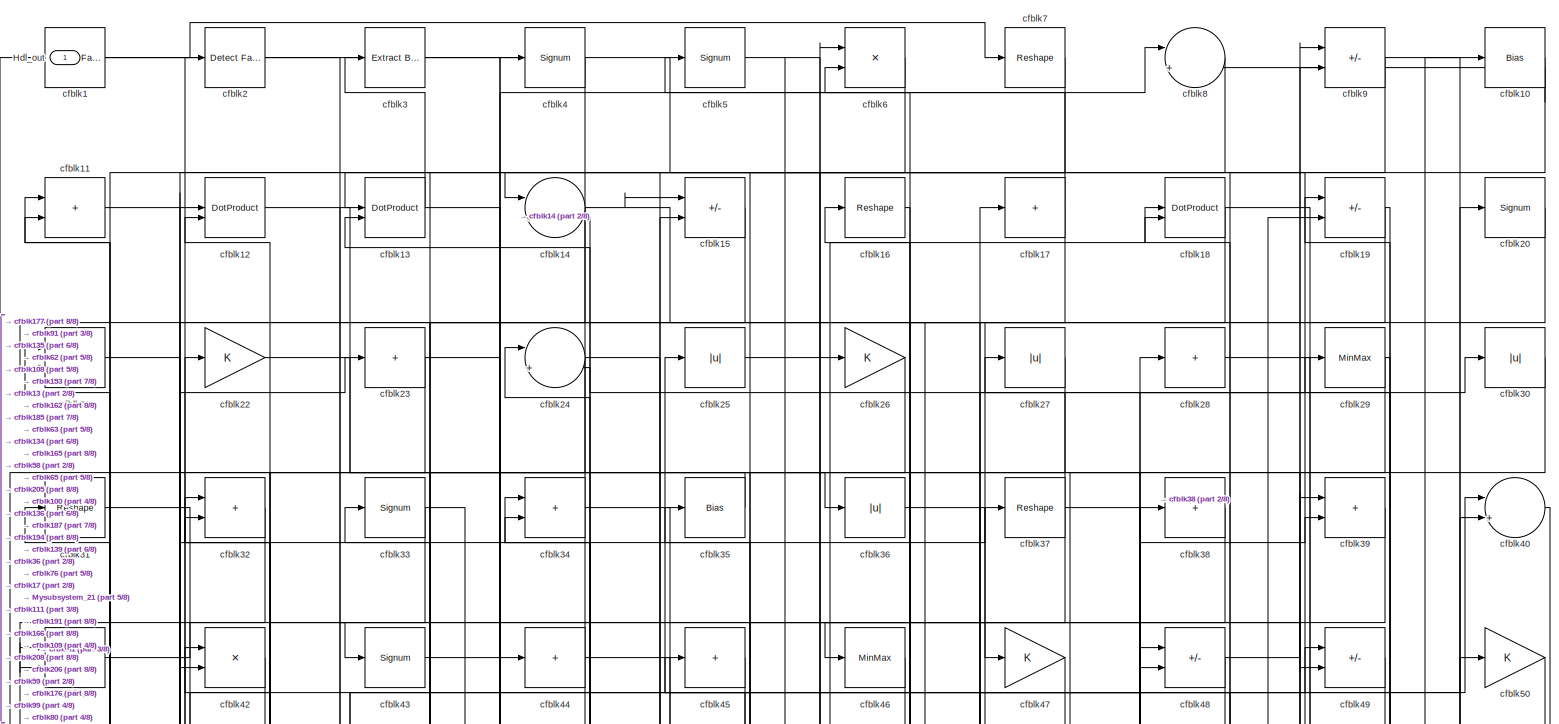
[diagram: root canvas - part 1/8, full width, top band]
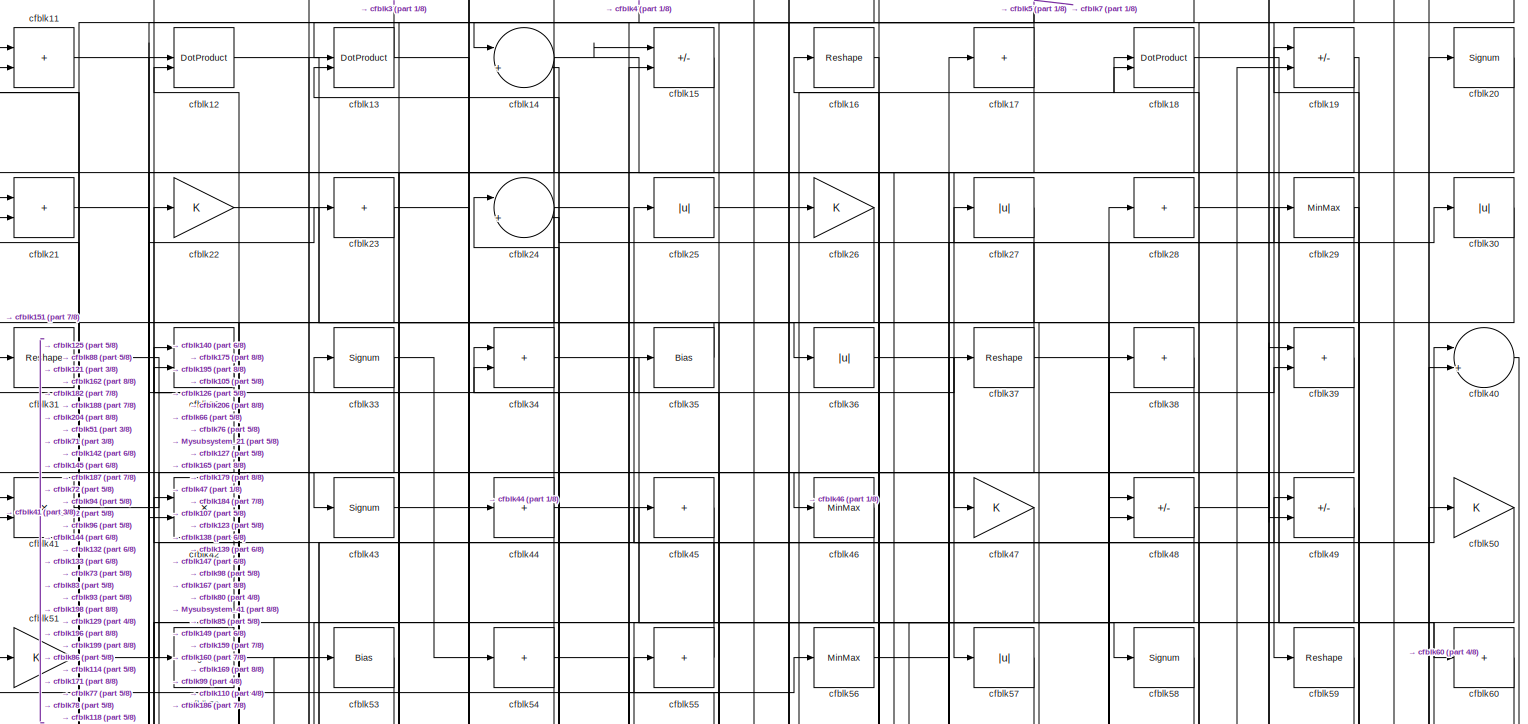
[diagram: root canvas - part 2/8, full width, top band]
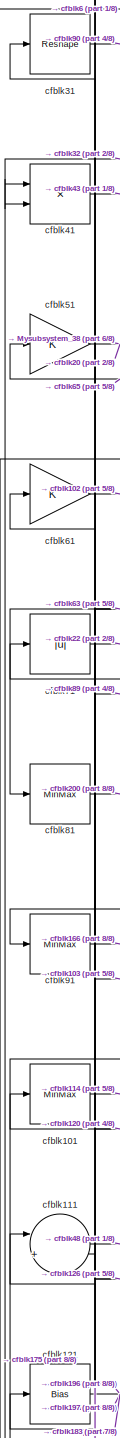
[diagram: root canvas - part 3/8, middle left region]
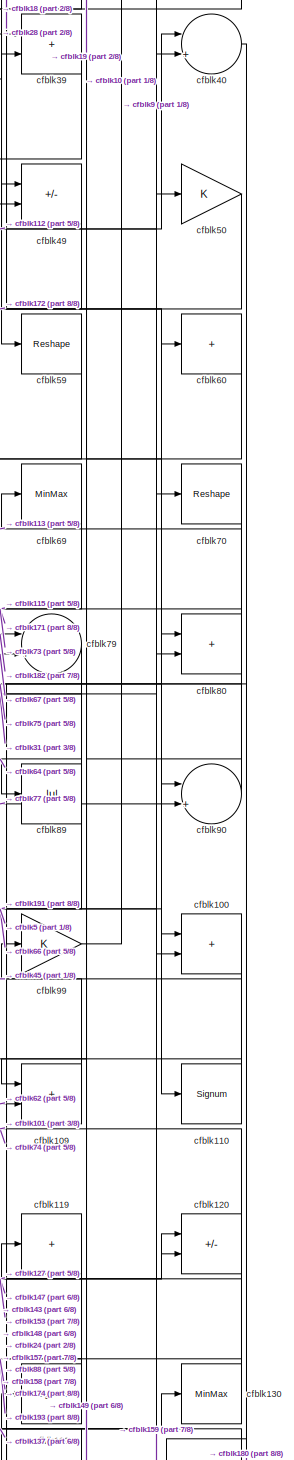
[diagram: root canvas - part 4/8, middle right region]
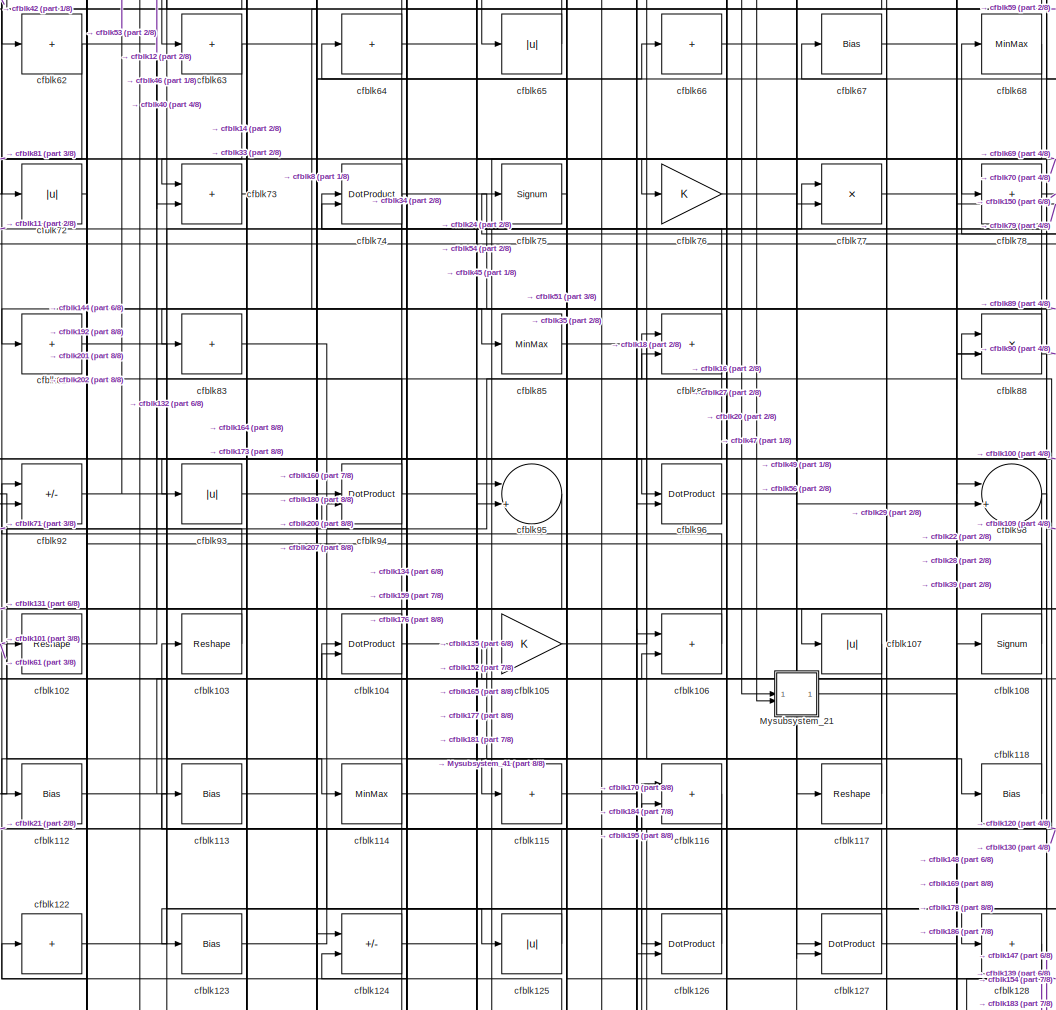
[diagram: root canvas - part 5/8, central region]
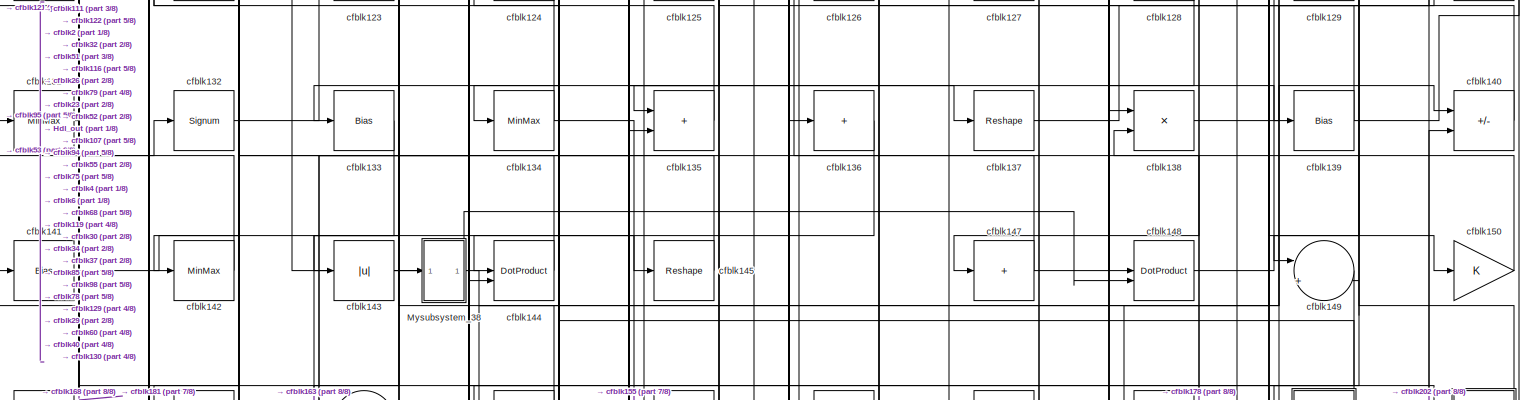
[diagram: root canvas - part 6/8, full width, bottom band]
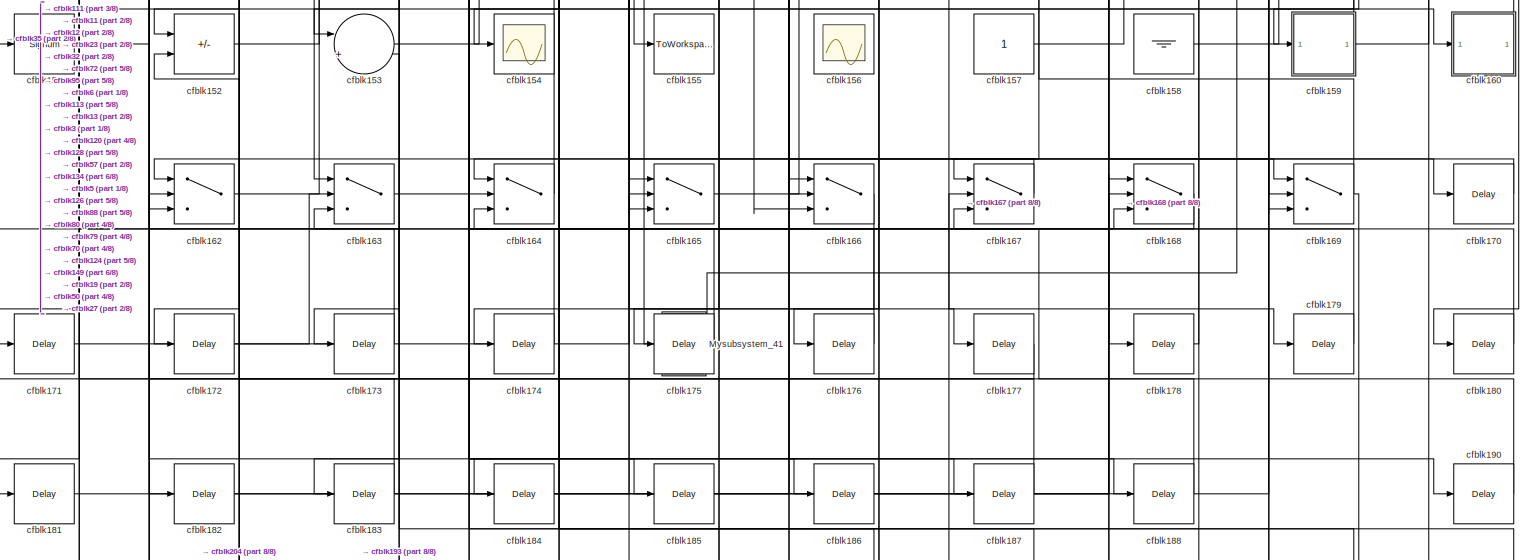
[diagram: root canvas - part 7/8, full width, bottom band]
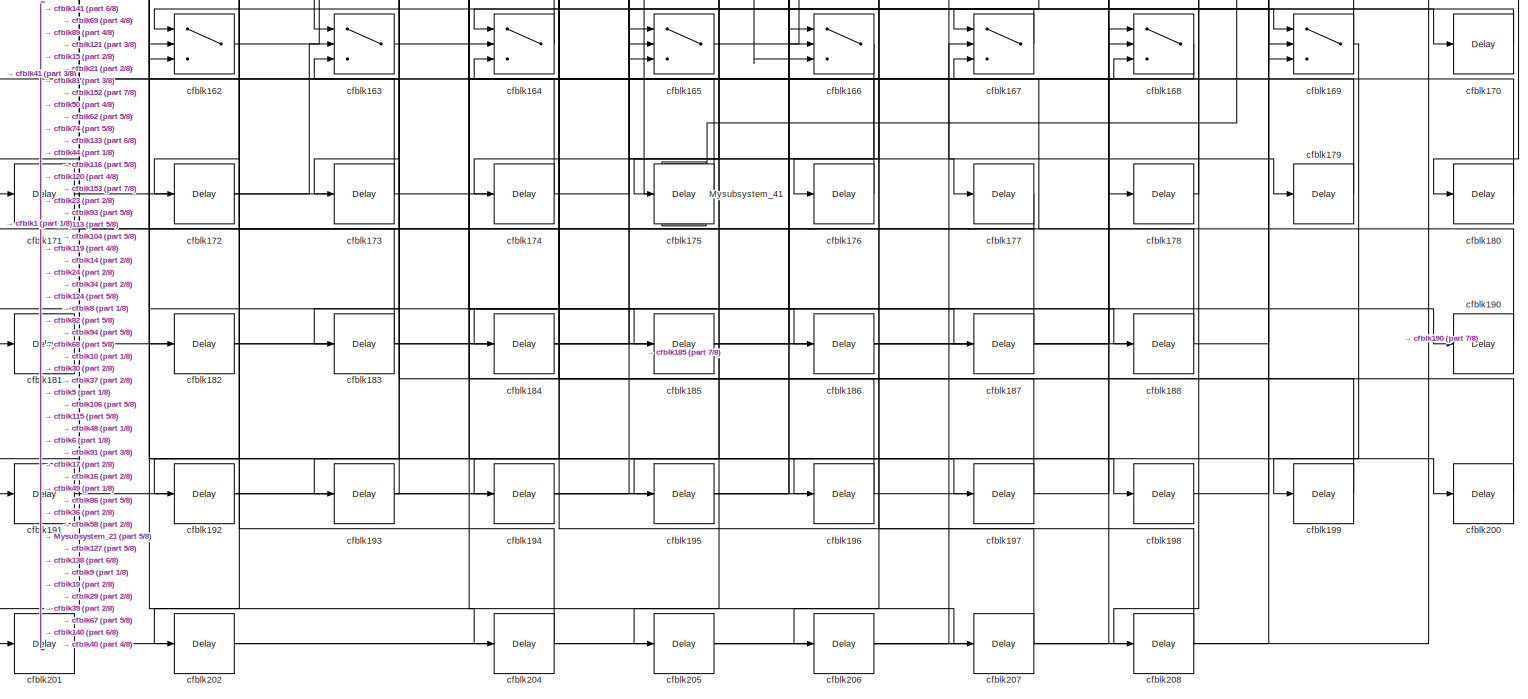
[diagram: root canvas - part 8/8, full width, bottom band]
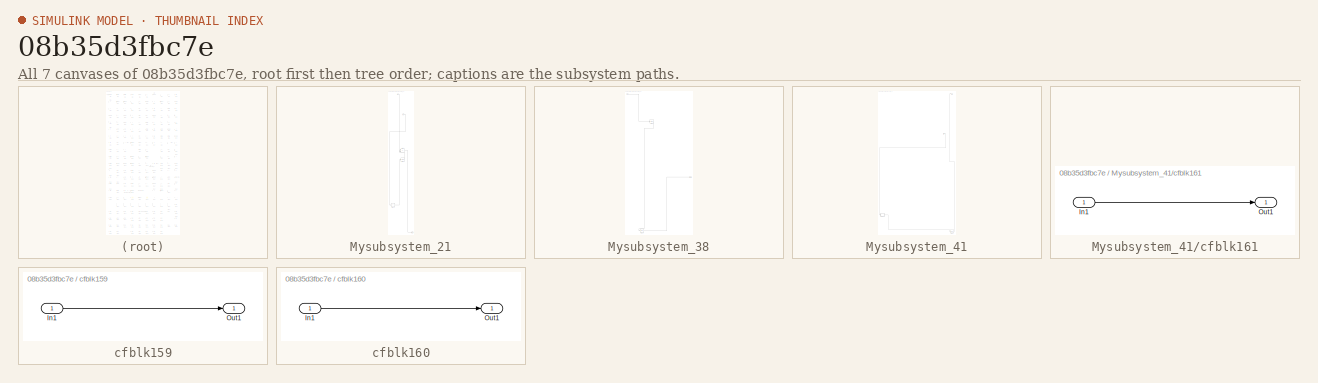
[diagram: thumbnail index - all 7 canvases of the model, root first then tree order]
MODEL slx_08b35d3fbc7e
KIND model
CONFIG AbsTol = auto
CONFIG EnableMultiTasking = off
CONFIG FixedStep = auto
CONFIG MaxStep = auto
CONFIG MinStep = auto
CONFIG RelTol = 1e-3
CONFIG SampleTimeConstraint = Unconstrained
CONFIG SolverName = VariableStepAuto
CONFIG StartTime = 0.0
CONFIG StopTime = 10.0
BLOCK [Outport] Hdl_out
  OutDataTypeStr = uint8
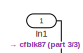
[diagram: Mysubsystem_21 - part 1/3, top center region]
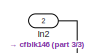
[diagram: Mysubsystem_21 - part 2/3, top center region]
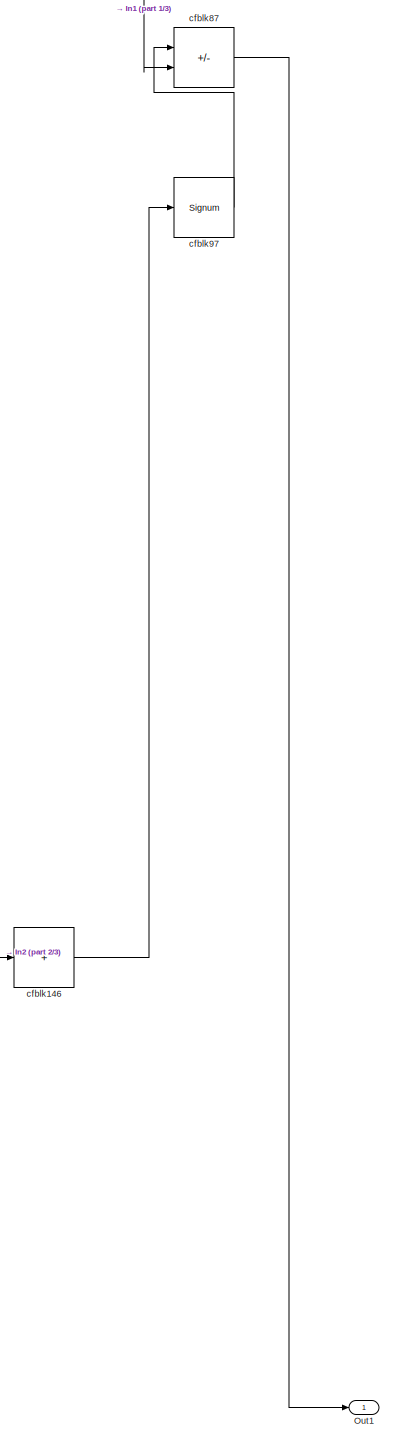
[diagram: Mysubsystem_21 - part 3/3, full width, bottom band]
BLOCK [SubSystem] Mysubsystem_21
  RTWFcnName = Mysubsystem_21
  RTWFcnNameOpts = User specified
  RTWFileNameOpts = Use function name
  RTWSystemCode = Reusable function
  TreatAsAtomicUnit = on
BLOCK [Inport] Mysubsystem_21/In1
BLOCK [Inport] Mysubsystem_21/In2
  Port = 2
BLOCK [Outport] Mysubsystem_21/Out1
BLOCK [Sum] Mysubsystem_21/cfblk146
  IconShape = rectangular
  Inputs = +
BLOCK [Sum] Mysubsystem_21/cfblk87
  IconShape = rectangular
  Inputs = +-
BLOCK [Signum] Mysubsystem_21/cfblk97
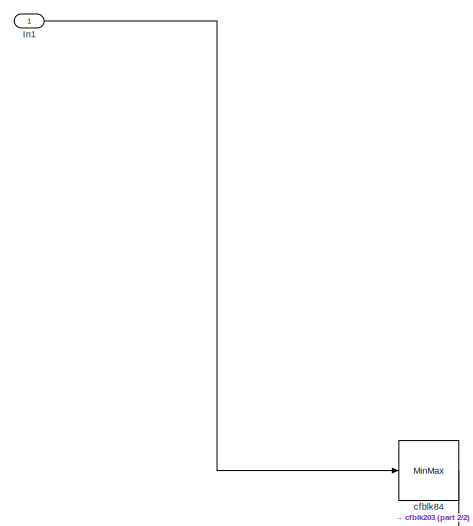
[diagram: Mysubsystem_38 - part 1/2, top left region]
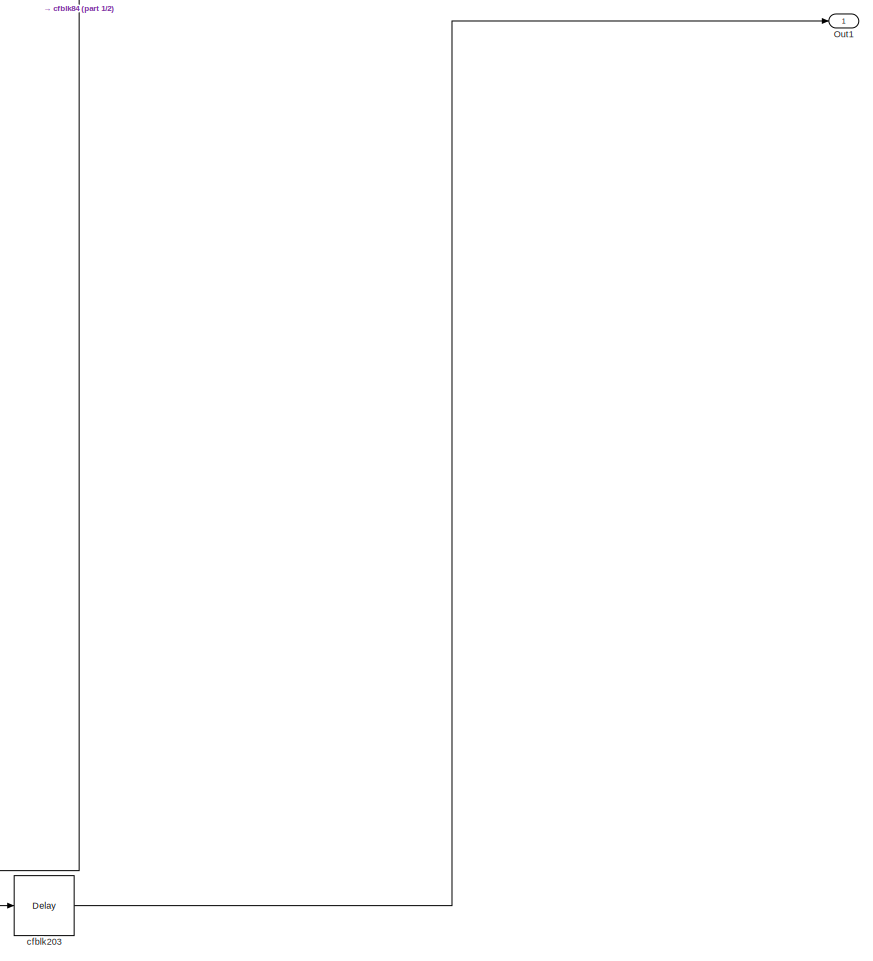
[diagram: Mysubsystem_38 - part 2/2, full width, bottom band]
BLOCK [SubSystem] Mysubsystem_38
  RTWFcnName = Mysubsystem_38
  RTWFcnNameOpts = User specified
  RTWFileNameOpts = Use function name
  RTWSystemCode = Reusable function
  TreatAsAtomicUnit = on
BLOCK [Inport] Mysubsystem_38/In1
BLOCK [Outport] Mysubsystem_38/Out1
BLOCK [Delay] Mysubsystem_38/cfblk203
  InputPortMap = u0
  SampleTime = 1
BLOCK [MinMax] Mysubsystem_38/cfblk84
BLOCK [SubSystem] Mysubsystem_41
  RTWFcnName = Mysubsystem_41
  RTWFcnNameOpts = User specified
  RTWFileNameOpts = Use function name
  RTWSystemCode = Reusable function
  TreatAsAtomicUnit = on
BLOCK [Inport] Mysubsystem_41/In1
BLOCK [Outport] Mysubsystem_41/Out1
BLOCK [SubSystem] Mysubsystem_41/cfblk161
  LibrarySourceBlock = hdlsllib/Ports &\nSubsystems/Subsystem
BLOCK [Inport] Mysubsystem_41/cfblk161/In1
BLOCK [Outport] Mysubsystem_41/cfblk161/Out1
BLOCK [Delay] Mysubsystem_41/cfblk189
  InputPortMap = u0
  SampleTime = 1
BLOCK [Reference] cfblk1  REF=hdlsllib/Logic and Bit
Operations/Detect Fall
Negative
  SourceBlock = hdlsllib/Logic and Bit\nOperations/Detect Fall\nNegative
  SourceType = Detect Fall Negative
BLOCK [Bias] cfblk10
  Bias = 0.0
  SaturateOnIntegerOverflow = off
BLOCK [Sum] cfblk100
  IconShape = rectangular
  OutDataTypeStr = uint8
BLOCK [MinMax] cfblk101
  OutDataTypeStr = uint8
BLOCK [Reshape] cfblk102
BLOCK [Reshape] cfblk103
BLOCK [DotProduct] cfblk104
  OutDataTypeStr = uint8
BLOCK [Gain] cfblk105
  OutDataTypeStr = uint8
BLOCK [Sum] cfblk106
  IconShape = rectangular
  OutDataTypeStr = uint8
BLOCK [Abs] cfblk107
  OutDataTypeStr = uint8
  SaturateOnIntegerOverflow = off
BLOCK [Signum] cfblk108
BLOCK [Sum] cfblk109
  IconShape = rectangular
  OutDataTypeStr = uint8
BLOCK [Sum] cfblk11
  IconShape = rectangular
  OutDataTypeStr = uint8
BLOCK [Signum] cfblk110
BLOCK [Sum] cfblk111
  Inputs = |++
  OutDataTypeStr = uint8
BLOCK [Bias] cfblk112
  Bias = 0.0
  SaturateOnIntegerOverflow = off
BLOCK [Bias] cfblk113
  Bias = 0.0
  SaturateOnIntegerOverflow = off
BLOCK [MinMax] cfblk114
  OutDataTypeStr = uint8
BLOCK [Sum] cfblk115
  IconShape = rectangular
  Inputs = +
  OutDataTypeStr = uint8
BLOCK [Sum] cfblk116
  IconShape = rectangular
  OutDataTypeStr = uint8
BLOCK [Reshape] cfblk117
BLOCK [Bias] cfblk118
  Bias = 0.0
  SaturateOnIntegerOverflow = off
BLOCK [Sum] cfblk119
  IconShape = rectangular
  Inputs = +
  OutDataTypeStr = uint8
BLOCK [DotProduct] cfblk12
  OutDataTypeStr = uint8
BLOCK [Sum] cfblk120
  IconShape = rectangular
  Inputs = +-
  OutDataTypeStr = uint8
BLOCK [Bias] cfblk121
  Bias = 0.0
  SaturateOnIntegerOverflow = off
BLOCK [Sum] cfblk122
  IconShape = rectangular
  Inputs = +
  OutDataTypeStr = uint8
BLOCK [Bias] cfblk123
  Bias = 0.0
  SaturateOnIntegerOverflow = off
BLOCK [Sum] cfblk124
  IconShape = rectangular
  Inputs = +-
  OutDataTypeStr = uint8
BLOCK [Abs] cfblk125
  OutDataTypeStr = uint8
  SaturateOnIntegerOverflow = off
BLOCK [DotProduct] cfblk126
  OutDataTypeStr = uint8
BLOCK [DotProduct] cfblk127
  OutDataTypeStr = uint8
BLOCK [Sum] cfblk128
  IconShape = rectangular
  Inputs = +
  OutDataTypeStr = uint8
BLOCK [Signum] cfblk129
BLOCK [DotProduct] cfblk13
  OutDataTypeStr = uint8
BLOCK [MinMax] cfblk130
  OutDataTypeStr = uint8
BLOCK [MinMax] cfblk131
  OutDataTypeStr = uint8
BLOCK [Signum] cfblk132
BLOCK [Bias] cfblk133
  Bias = 0.0
  SaturateOnIntegerOverflow = off
BLOCK [MinMax] cfblk134
  OutDataTypeStr = uint8
BLOCK [Sum] cfblk135
  IconShape = rectangular
  OutDataTypeStr = uint8
BLOCK [Sum] cfblk136
  IconShape = rectangular
  Inputs = +
  OutDataTypeStr = uint8
BLOCK [Reshape] cfblk137
BLOCK [Product] cfblk138
  Inputs = */
  OutDataTypeStr = uint8
  RndMeth = Zero
  SaturateOnIntegerOverflow = on
BLOCK [Bias] cfblk139
  Bias = 0.0
  SaturateOnIntegerOverflow = off
BLOCK [Sum] cfblk14
  Inputs = |++
  OutDataTypeStr = uint8
BLOCK [Sum] cfblk140
  IconShape = rectangular
  Inputs = +-
  OutDataTypeStr = uint8
BLOCK [Bias] cfblk141
  Bias = 0.0
  SaturateOnIntegerOverflow = off
BLOCK [MinMax] cfblk142
  OutDataTypeStr = uint8
BLOCK [Abs] cfblk143
  OutDataTypeStr = uint8
  SaturateOnIntegerOverflow = off
BLOCK [DotProduct] cfblk144
  OutDataTypeStr = uint8
BLOCK [Reshape] cfblk145
BLOCK [Sum] cfblk147
  IconShape = rectangular
  Inputs = +
  OutDataTypeStr = uint8
BLOCK [DotProduct] cfblk148
  OutDataTypeStr = uint8
BLOCK [Sum] cfblk149
  Inputs = |++
  OutDataTypeStr = uint8
BLOCK [Sum] cfblk15
  IconShape = rectangular
  Inputs = +-
  OutDataTypeStr = uint8
BLOCK [Gain] cfblk150
  OutDataTypeStr = uint8
BLOCK [Signum] cfblk151
BLOCK [Sum] cfblk152
  IconShape = rectangular
  Inputs = +-
  OutDataTypeStr = uint8
BLOCK [Sum] cfblk153
  Inputs = |++
  OutDataTypeStr = uint8
BLOCK [Scope] cfblk154
  Floating = off
  NumInputPorts = 1
  ScopeSpecificationString = Simulink.scopes.TimeScopeBlockCfg('CurrentConfiguration', extmgr.ConfigurationSet(extmgr.Configuration('Core','General UI',true),extmgr.Configuration('Core','Source UI',true),extmgr.Configuration('Sources','WiredSimulink',true,'DataLoggingVariableName','ScopeData2','DataLoggingSaveFormat','Array','DataLoggingLimitDataPoints',true,'DataLoggingDecimation','1'),extmgr.Configuration('Visuals','Time Do...<+868ch>
BLOCK [ToWorkspace] cfblk155
  MaxDataPoints = inf
  SampleTime = -1
  SaveFormat = Timeseries
  VariableName = simout
BLOCK [Scope] cfblk156
  Floating = on
  NumInputPorts = 1
  ScopeSpecificationString = Simulink.scopes.TimeScopeBlockCfg('CurrentConfiguration', extmgr.ConfigurationSet(extmgr.Configuration('Core','General UI',true,'FigureColor',[0.156862745098039 0.156862745098039 0.156862745098039]),extmgr.Configuration('Core','Source UI',true),extmgr.Configuration('Sources','WiredSimulink',true,'DataLoggingVariableName','ScopeData1','DataLoggingSaveFormat','StructureWithTime','DataLoggingLimitDat...<+2713ch>
BLOCK [Constant] cfblk157
  OutDataTypeStr = uint8
  SampleTime = -1
BLOCK [Ground] cfblk158
BLOCK [SubSystem] cfblk159
  LibrarySourceBlock = hdlsllib/Ports &\nSubsystems/Subsystem
BLOCK [Inport] cfblk159/In1
BLOCK [Outport] cfblk159/Out1
BLOCK [Reshape] cfblk16
BLOCK [SubSystem] cfblk160
  LibrarySourceBlock = hdlsllib/Ports &\nSubsystems/Subsystem
BLOCK [Inport] cfblk160/In1
BLOCK [Outport] cfblk160/Out1
BLOCK [Switch] cfblk162
  InputSameDT = off
  OutDataTypeStr = uint8
  SaturateOnIntegerOverflow = off
BLOCK [Switch] cfblk163
  InputSameDT = off
  OutDataTypeStr = uint8
  SaturateOnIntegerOverflow = off
BLOCK [Switch] cfblk164
  InputSameDT = off
  OutDataTypeStr = uint8
  SaturateOnIntegerOverflow = off
BLOCK [Switch] cfblk165
  InputSameDT = off
  OutDataTypeStr = uint8
  SaturateOnIntegerOverflow = off
BLOCK [Switch] cfblk166
  InputSameDT = off
  OutDataTypeStr = uint8
  SaturateOnIntegerOverflow = off
BLOCK [Switch] cfblk167
  InputSameDT = off
  OutDataTypeStr = uint8
  SaturateOnIntegerOverflow = off
BLOCK [Switch] cfblk168
  InputSameDT = off
  OutDataTypeStr = uint8
  SaturateOnIntegerOverflow = off
BLOCK [Switch] cfblk169
  InputSameDT = off
  OutDataTypeStr = uint8
  SaturateOnIntegerOverflow = off
BLOCK [Sum] cfblk17
  IconShape = rectangular
  Inputs = +
  OutDataTypeStr = uint8
BLOCK [Delay] cfblk170
  InputPortMap = u0
  SampleTime = 1
BLOCK [Delay] cfblk171
  InputPortMap = u0
  SampleTime = 1
BLOCK [Delay] cfblk172
  InputPortMap = u0
  SampleTime = 1
BLOCK [Delay] cfblk173
  InputPortMap = u0
  SampleTime = 1
BLOCK [Delay] cfblk174
  InputPortMap = u0
  SampleTime = 1
BLOCK [Delay] cfblk175
  InputPortMap = u0
  SampleTime = 1
BLOCK [Delay] cfblk176
  InputPortMap = u0
  SampleTime = 1
BLOCK [Delay] cfblk177
  InputPortMap = u0
  SampleTime = 1
BLOCK [Delay] cfblk178
  InputPortMap = u0
  SampleTime = 1
BLOCK [Delay] cfblk179
  InputPortMap = u0
  SampleTime = 1
BLOCK [DotProduct] cfblk18
  OutDataTypeStr = uint8
BLOCK [Delay] cfblk180
  InputPortMap = u0
  SampleTime = 1
BLOCK [Delay] cfblk181
  InputPortMap = u0
  SampleTime = 1
BLOCK [Delay] cfblk182
  InputPortMap = u0
  SampleTime = 1
BLOCK [Delay] cfblk183
  InputPortMap = u0
  SampleTime = 1
BLOCK [Delay] cfblk184
  InputPortMap = u0
  SampleTime = 1
BLOCK [Delay] cfblk185
  InputPortMap = u0
  SampleTime = 1
BLOCK [Delay] cfblk186
  InputPortMap = u0
  SampleTime = 1
BLOCK [Delay] cfblk187
  InputPortMap = u0
  SampleTime = 1
BLOCK [Delay] cfblk188
  InputPortMap = u0
  SampleTime = 1
BLOCK [Sum] cfblk19
  IconShape = rectangular
  Inputs = +-
  OutDataTypeStr = uint8
BLOCK [Delay] cfblk190
  InputPortMap = u0
  SampleTime = 1
BLOCK [Delay] cfblk191
  InputPortMap = u0
  SampleTime = 1
BLOCK [Delay] cfblk192
  InputPortMap = u0
  SampleTime = 1
BLOCK [Delay] cfblk193
  InputPortMap = u0
  SampleTime = 1
BLOCK [Delay] cfblk194
  InputPortMap = u0
  SampleTime = 1
BLOCK [Delay] cfblk195
  InputPortMap = u0
  SampleTime = 1
BLOCK [Delay] cfblk196
  InputPortMap = u0
  SampleTime = 1
BLOCK [Delay] cfblk197
  InputPortMap = u0
  SampleTime = 1
BLOCK [Delay] cfblk198
  InputPortMap = u0
  SampleTime = 1
BLOCK [Delay] cfblk199
  InputPortMap = u0
  SampleTime = 1
BLOCK [Reference] cfblk2  REF=hdlsllib/Logic and Bit
Operations/Detect Fall
Negative
  SourceBlock = hdlsllib/Logic and Bit\nOperations/Detect Fall\nNegative
  SourceType = Detect Fall Negative
BLOCK [Signum] cfblk20
BLOCK [Delay] cfblk200
  InputPortMap = u0
  SampleTime = 1
BLOCK [Delay] cfblk201
  InputPortMap = u0
  SampleTime = 1
BLOCK [Delay] cfblk202
  InputPortMap = u0
  SampleTime = 1
BLOCK [Delay] cfblk204
  InputPortMap = u0
  SampleTime = 1
BLOCK [Delay] cfblk205
  InputPortMap = u0
  SampleTime = 1
BLOCK [Delay] cfblk206
  InputPortMap = u0
  SampleTime = 1
BLOCK [Delay] cfblk207
  InputPortMap = u0
  SampleTime = 1
BLOCK [Delay] cfblk208
  InputPortMap = u0
  SampleTime = 1
BLOCK [Sum] cfblk21
  IconShape = rectangular
  OutDataTypeStr = uint8
BLOCK [Gain] cfblk22
  OutDataTypeStr = uint8
BLOCK [Sum] cfblk23
  IconShape = rectangular
  Inputs = +
  OutDataTypeStr = uint8
BLOCK [Sum] cfblk24
  Inputs = |++
  OutDataTypeStr = uint8
BLOCK [Abs] cfblk25
  OutDataTypeStr = uint8
  SaturateOnIntegerOverflow = off
BLOCK [Gain] cfblk26
  OutDataTypeStr = uint8
BLOCK [Abs] cfblk27
  OutDataTypeStr = uint8
  SaturateOnIntegerOverflow = off
BLOCK [Sum] cfblk28
  IconShape = rectangular
  Inputs = +
  OutDataTypeStr = uint8
BLOCK [MinMax] cfblk29
  OutDataTypeStr = uint8
BLOCK [Reference] cfblk3  REF=simulink/Logic and Bit
Operations/Extract Bits
  LibrarySourceBlock = hdlsllib/Logic and Bit\nOperations/Extract Bits
  SourceBlock = simulink/Logic and Bit\nOperations/Extract Bits
  SourceType = Extract Bits
BLOCK [Abs] cfblk30
  OutDataTypeStr = uint8
  SaturateOnIntegerOverflow = off
BLOCK [Reshape] cfblk31
BLOCK [Sum] cfblk32
  IconShape = rectangular
  OutDataTypeStr = uint8
BLOCK [Signum] cfblk33
BLOCK [Sum] cfblk34
  IconShape = rectangular
  OutDataTypeStr = uint8
BLOCK [Bias] cfblk35
  Bias = 0.0
  SaturateOnIntegerOverflow = off
BLOCK [Abs] cfblk36
  OutDataTypeStr = uint8
  SaturateOnIntegerOverflow = off
BLOCK [Reshape] cfblk37
BLOCK [Sum] cfblk38
  IconShape = rectangular
  Inputs = +
  OutDataTypeStr = uint8
BLOCK [Sum] cfblk39
  IconShape = rectangular
  OutDataTypeStr = uint8
BLOCK [Signum] cfblk4
BLOCK [Sum] cfblk40
  Inputs = |++
  OutDataTypeStr = uint8
BLOCK [Product] cfblk41
  Inputs = */
  OutDataTypeStr = uint8
  RndMeth = Zero
  SaturateOnIntegerOverflow = on
BLOCK [Product] cfblk42
  Inputs = */
  OutDataTypeStr = uint8
  RndMeth = Zero
  SaturateOnIntegerOverflow = on
BLOCK [Signum] cfblk43
BLOCK [Sum] cfblk44
  IconShape = rectangular
  Inputs = +
  OutDataTypeStr = uint8
BLOCK [Sum] cfblk45
  IconShape = rectangular
  Inputs = +
  OutDataTypeStr = uint8
BLOCK [MinMax] cfblk46
  OutDataTypeStr = uint8
BLOCK [Gain] cfblk47
  OutDataTypeStr = uint8
BLOCK [Sum] cfblk48
  IconShape = rectangular
  Inputs = +-
  OutDataTypeStr = uint8
BLOCK [Sum] cfblk49
  IconShape = rectangular
  Inputs = +-
  OutDataTypeStr = uint8
BLOCK [Signum] cfblk5
BLOCK [Gain] cfblk50
  OutDataTypeStr = uint8
BLOCK [Gain] cfblk51
  OutDataTypeStr = uint8
BLOCK [Signum] cfblk52
BLOCK [Bias] cfblk53
  Bias = 0.0
  SaturateOnIntegerOverflow = off
BLOCK [Sum] cfblk54
  IconShape = rectangular
  Inputs = +
  OutDataTypeStr = uint8
BLOCK [Sum] cfblk55
  IconShape = rectangular
  Inputs = +
  OutDataTypeStr = uint8
BLOCK [MinMax] cfblk56
  OutDataTypeStr = uint8
BLOCK [Abs] cfblk57
  OutDataTypeStr = uint8
  SaturateOnIntegerOverflow = off
BLOCK [Signum] cfblk58
BLOCK [Reshape] cfblk59
BLOCK [Product] cfblk6
  Inputs = */
  OutDataTypeStr = uint8
  RndMeth = Zero
  SaturateOnIntegerOverflow = on
BLOCK [Sum] cfblk60
  IconShape = rectangular
  Inputs = +
  OutDataTypeStr = uint8
BLOCK [Gain] cfblk61
  OutDataTypeStr = uint8
BLOCK [Sum] cfblk62
  IconShape = rectangular
  Inputs = +
  OutDataTypeStr = uint8
BLOCK [Sum] cfblk63
  IconShape = rectangular
  Inputs = +
  OutDataTypeStr = uint8
BLOCK [Sum] cfblk64
  IconShape = rectangular
  Inputs = +
  OutDataTypeStr = uint8
BLOCK [Abs] cfblk65
  OutDataTypeStr = uint8
  SaturateOnIntegerOverflow = off
BLOCK [Sum] cfblk66
  IconShape = rectangular
  Inputs = +
  OutDataTypeStr = uint8
BLOCK [Bias] cfblk67
  Bias = 0.0
  SaturateOnIntegerOverflow = off
BLOCK [MinMax] cfblk68
  OutDataTypeStr = uint8
BLOCK [MinMax] cfblk69
  OutDataTypeStr = uint8
BLOCK [Reshape] cfblk7
BLOCK [Reshape] cfblk70
BLOCK [Abs] cfblk71
  OutDataTypeStr = uint8
  SaturateOnIntegerOverflow = off
BLOCK [Abs] cfblk72
  OutDataTypeStr = uint8
  SaturateOnIntegerOverflow = off
BLOCK [Sum] cfblk73
  IconShape = rectangular
  OutDataTypeStr = uint8
BLOCK [DotProduct] cfblk74
  OutDataTypeStr = uint8
BLOCK [Signum] cfblk75
BLOCK [Gain] cfblk76
  OutDataTypeStr = uint8
BLOCK [Product] cfblk77
  Inputs = */
  OutDataTypeStr = uint8
  RndMeth = Zero
  SaturateOnIntegerOverflow = on
BLOCK [Sum] cfblk78
  IconShape = rectangular
  Inputs = +
  OutDataTypeStr = uint8
BLOCK [Sum] cfblk79
  Inputs = |++
  OutDataTypeStr = uint8
BLOCK [Sum] cfblk8
  Inputs = |++
  OutDataTypeStr = uint8
BLOCK [Sum] cfblk80
  IconShape = rectangular
  OutDataTypeStr = uint8
BLOCK [MinMax] cfblk81
  OutDataTypeStr = uint8
BLOCK [Sum] cfblk82
  IconShape = rectangular
  Inputs = +
  OutDataTypeStr = uint8
BLOCK [Sum] cfblk83
  IconShape = rectangular
  Inputs = +
  OutDataTypeStr = uint8
BLOCK [MinMax] cfblk85
  OutDataTypeStr = uint8
BLOCK [Sum] cfblk86
  IconShape = rectangular
  OutDataTypeStr = uint8
BLOCK [Product] cfblk88
  Inputs = */
  OutDataTypeStr = uint8
  RndMeth = Zero
  SaturateOnIntegerOverflow = on
BLOCK [Abs] cfblk89
  OutDataTypeStr = uint8
  SaturateOnIntegerOverflow = off
BLOCK [Sum] cfblk9
  IconShape = rectangular
  Inputs = +-
  OutDataTypeStr = uint8
BLOCK [Sum] cfblk90
  Inputs = |++
  OutDataTypeStr = uint8
BLOCK [MinMax] cfblk91
  OutDataTypeStr = uint8
BLOCK [Sum] cfblk92
  IconShape = rectangular
  Inputs = +-
  OutDataTypeStr = uint8
BLOCK [Abs] cfblk93
  OutDataTypeStr = uint8
  SaturateOnIntegerOverflow = off
BLOCK [DotProduct] cfblk94
  OutDataTypeStr = uint8
BLOCK [Sum] cfblk95
  Inputs = |++
  OutDataTypeStr = uint8
BLOCK [DotProduct] cfblk96
  OutDataTypeStr = uint8
BLOCK [Sum] cfblk98
  Inputs = |++
  OutDataTypeStr = uint8
BLOCK [Gain] cfblk99
  OutDataTypeStr = uint8
LINE Mysubsystem_21/In1:1 -> Mysubsystem_21/cfblk87:2
LINE Mysubsystem_21/In2:1 -> Mysubsystem_21/cfblk146:1
LINE Mysubsystem_21/cfblk146:1 -> Mysubsystem_21/cfblk97:1
LINE Mysubsystem_21/cfblk87:1 -> Mysubsystem_21/Out1:1
LINE Mysubsystem_21/cfblk97:1 -> Mysubsystem_21/cfblk87:1
LINE Mysubsystem_21:1 -> cfblk178:1
LINE Mysubsystem_38/In1:1 -> Mysubsystem_38/cfblk84:1
LINE Mysubsystem_38/cfblk203:1 -> Mysubsystem_38/Out1:1
LINE Mysubsystem_38/cfblk84:1 -> Mysubsystem_38/cfblk203:1
LINE Mysubsystem_38:1 -> cfblk148:2
LINE Mysubsystem_41/In1:1 -> Mysubsystem_41/cfblk161:1
LINE Mysubsystem_41/cfblk161/In1:1 -> Mysubsystem_41/cfblk161/Out1:1
LINE Mysubsystem_41/cfblk161:1 -> Mysubsystem_41/cfblk189:1
LINE Mysubsystem_41/cfblk189:1 -> Mysubsystem_41/Out1:1
LINE Mysubsystem_41:1 -> cfblk19:2
LINE cfblk100:1 -> cfblk112:1
LINE cfblk101:1 -> cfblk114:1
LINE cfblk102:1 -> cfblk86:1
LINE cfblk103:1 -> cfblk71:1
LINE cfblk104:1 -> cfblk127:1
LINE cfblk105:1 -> cfblk18:1
LINE cfblk106:1 -> cfblk92:1
LINE cfblk107:1 -> cfblk134:1
LINE cfblk108:1 -> cfblk42:1
NET cfblk109:1 -> cfblk45:1, cfblk74:2
NET cfblk10:1 -> cfblk205:1, cfblk8:2
LINE cfblk110:1 -> cfblk99:1
LINE cfblk111:1 -> cfblk48:1
NET cfblk112:1 -> cfblk106:2, cfblk40:1
NET cfblk113:1 -> cfblk160:1, cfblk69:1
LINE cfblk114:1 -> cfblk56:1
LINE cfblk115:1 -> cfblk170:1
LINE cfblk116:1 -> cfblk173:1
LINE cfblk117:1 -> cfblk64:1
NET cfblk118:1 -> cfblk11:2, cfblk35:1
LINE cfblk119:1 -> cfblk174:1
LINE cfblk11:1 -> cfblk182:1
NET cfblk120:1 -> cfblk101:1, cfblk193:1, cfblk74:1
NET cfblk121:1 -> cfblk196:1, cfblk197:1, cfblk37:1
NET cfblk122:1 -> cfblk108:1, cfblk77:1
LINE cfblk123:1 -> cfblk28:1
NET cfblk124:1 -> cfblk104:1, cfblk169:2
LINE cfblk125:1 -> cfblk21:1
NET cfblk126:1 -> cfblk105:1, cfblk61:1
NET cfblk127:1 -> cfblk103:1, cfblk120:2, cfblk169:1, cfblk39:2
NET cfblk128:1 -> cfblk154:1, cfblk183:1
LINE cfblk129:1 -> cfblk24:1
NET cfblk12:1 -> cfblk36:1, cfblk96:1
LINE cfblk130:1 -> cfblk88:1
LINE cfblk131:1 -> cfblk111:1
LINE cfblk132:1 -> cfblk116:1
LINE cfblk133:1 -> cfblk163:1
NET cfblk134:1 -> Hdl_out:1, cfblk137:1, cfblk155:1
LINE cfblk135:1 -> cfblk2:1
LINE cfblk136:1 -> cfblk144:1
LINE cfblk137:1 -> cfblk40:2
LINE cfblk138:1 -> cfblk140:1
NET cfblk139:1 -> cfblk68:1, cfblk6:2
NET cfblk13:1 -> cfblk186:1, cfblk3:1
LINE cfblk140:1 -> cfblk55:1
LINE cfblk141:1 -> cfblk145:1
LINE cfblk142:1 -> cfblk121:1
LINE cfblk143:1 -> cfblk130:1
LINE cfblk144:1 -> cfblk122:1
LINE cfblk145:1 -> cfblk32:1
NET cfblk147:1 -> cfblk116:2, cfblk119:1, cfblk30:1
LINE cfblk148:1 -> cfblk129:1
LINE cfblk149:1 -> cfblk181:1
NET cfblk14:1 -> cfblk127:2, cfblk15:1, cfblk83:1
LINE cfblk150:1 -> cfblk94:2
NET cfblk151:1 -> cfblk188:1, cfblk23:1
LINE cfblk152:1 -> cfblk95:2
NET cfblk153:1 -> cfblk120:1, cfblk190:1
LINE cfblk157:1 -> cfblk80:1
LINE cfblk158:1 -> cfblk70:1
LINE cfblk159/In1:1 -> cfblk159/Out1:1
NET cfblk159:1 -> cfblk124:2, cfblk50:1
LINE cfblk15:1 -> cfblk162:3
LINE cfblk160/In1:1 -> cfblk160/Out1:1
LINE cfblk160:1 -> cfblk27:1
LINE cfblk162:1 -> cfblk44:1
LINE cfblk163:1 -> cfblk168:3
LINE cfblk164:1 -> cfblk113:1
LINE cfblk165:1 -> cfblk17:1
LINE cfblk166:1 -> cfblk194:1
LINE cfblk167:1 -> cfblk164:1
LINE cfblk168:1 -> cfblk141:1
NET cfblk169:1 -> cfblk199:1, cfblk67:1
LINE cfblk16:1 -> cfblk206:1
LINE cfblk170:1 -> cfblk162:1
LINE cfblk171:1 -> cfblk15:2
LINE cfblk172:1 -> cfblk163:2
LINE cfblk173:1 -> cfblk162:2
LINE cfblk174:1 -> cfblk164:2
LINE cfblk175:1 -> cfblk41:1
LINE cfblk176:1 -> cfblk104:2
LINE cfblk177:1 -> cfblk1:1
LINE cfblk178:1 -> cfblk138:2
LINE cfblk179:1 -> cfblk24:2
NET cfblk17:1 -> cfblk13:1, cfblk57:1, cfblk5:1
LINE cfblk180:1 -> cfblk94:1
LINE cfblk181:1 -> cfblk95:1
LINE cfblk182:1 -> cfblk79:1
LINE cfblk183:1 -> cfblk111:2
LINE cfblk184:1 -> cfblk126:2
LINE cfblk185:1 -> cfblk168:2
LINE cfblk186:1 -> cfblk88:2
LINE cfblk187:1 -> cfblk32:2
LINE cfblk188:1 -> cfblk12:1
NET cfblk18:1 -> cfblk110:1, cfblk93:1
LINE cfblk190:1 -> cfblk167:3
LINE cfblk191:1 -> cfblk48:2
LINE cfblk192:1 -> cfblk165:2
LINE cfblk193:1 -> cfblk153:2
LINE cfblk194:1 -> cfblk6:1
LINE cfblk195:1 -> cfblk106:1
LINE cfblk196:1 -> cfblk34:2
LINE cfblk197:1 -> cfblk163:3
LINE cfblk198:1 -> cfblk39:1
LINE cfblk199:1 -> cfblk14:2
NET cfblk19:1 -> cfblk159:1, cfblk21:2
LINE cfblk1:1 -> cfblk7:1
LINE cfblk200:1 -> cfblk124:1
LINE cfblk201:1 -> cfblk168:1
LINE cfblk202:1 -> cfblk140:2
LINE cfblk204:1 -> cfblk152:2
LINE cfblk205:1 -> cfblk167:2
LINE cfblk206:1 -> cfblk9:2
LINE cfblk207:1 -> cfblk86:2
LINE cfblk208:1 -> cfblk164:3
NET cfblk20:1 -> Mysubsystem_21:1, cfblk76:1
NET cfblk21:1 -> cfblk204:1, cfblk96:2
LINE cfblk22:1 -> cfblk98:1
NET cfblk23:1 -> cfblk142:1, cfblk198:1
NET cfblk24:1 -> cfblk72:1, cfblk77:2, cfblk92:2
LINE cfblk25:1 -> cfblk26:1
LINE cfblk26:1 -> cfblk133:1
LINE cfblk27:1 -> cfblk126:1
LINE cfblk28:1 -> cfblk60:1
NET cfblk29:1 -> cfblk107:1, cfblk149:2, cfblk169:3
LINE cfblk2:1 -> cfblk49:2
LINE cfblk30:1 -> cfblk175:1
LINE cfblk31:1 -> cfblk90:1
LINE cfblk32:1 -> cfblk41:2
NET cfblk33:1 -> cfblk52:1, cfblk54:1
LINE cfblk34:1 -> cfblk138:1
LINE cfblk35:1 -> cfblk151:1
NET cfblk36:1 -> cfblk179:1, cfblk47:1
NET cfblk37:1 -> cfblk139:1, cfblk13:2, cfblk195:1
LINE cfblk38:1 -> cfblk46:1
LINE cfblk39:1 -> cfblk73:2
LINE cfblk3:1 -> cfblk185:1
LINE cfblk40:1 -> cfblk180:1
LINE cfblk41:1 -> cfblk43:1
LINE cfblk42:1 -> cfblk62:1
LINE cfblk43:1 -> cfblk4:1
LINE cfblk44:1 -> cfblk58:1
LINE cfblk45:1 -> cfblk65:1
LINE cfblk46:1 -> cfblk63:1
LINE cfblk47:1 -> Mysubsystem_21:2
NET cfblk48:1 -> cfblk166:2, cfblk9:1
LINE cfblk49:1 -> cfblk176:1
NET cfblk4:1 -> cfblk136:1, cfblk59:1
LINE cfblk50:1 -> cfblk172:1
NET cfblk51:1 -> Mysubsystem_38:1, cfblk20:1
NET cfblk52:1 -> cfblk144:2, cfblk38:1
LINE cfblk53:1 -> cfblk132:1
LINE cfblk54:1 -> cfblk78:1
LINE cfblk55:1 -> cfblk25:1
LINE cfblk56:1 -> cfblk98:2
LINE cfblk57:1 -> cfblk184:1
LINE cfblk58:1 -> cfblk167:1
LINE cfblk59:1 -> cfblk85:1
NET cfblk5:1 -> cfblk100:2, cfblk166:3, cfblk187:1
LINE cfblk60:1 -> cfblk149:1
LINE cfblk61:1 -> cfblk102:1
NET cfblk62:1 -> cfblk109:2, cfblk201:1, cfblk202:1
NET cfblk63:1 -> cfblk81:1, cfblk8:1
LINE cfblk64:1 -> cfblk89:1
LINE cfblk65:1 -> cfblk51:1
NET cfblk66:1 -> cfblk100:1, cfblk16:1
LINE cfblk67:1 -> cfblk79:2
LINE cfblk68:1 -> Mysubsystem_41:1
NET cfblk69:1 -> cfblk115:1, cfblk171:1
NET cfblk6:1 -> cfblk153:1, cfblk91:1
LINE cfblk70:1 -> cfblk73:1
LINE cfblk71:1 -> cfblk22:1
LINE cfblk72:1 -> cfblk152:1
LINE cfblk73:1 -> cfblk33:1
NET cfblk74:1 -> cfblk117:1, cfblk192:1
LINE cfblk75:1 -> cfblk135:1
LINE cfblk76:1 -> cfblk49:1
LINE cfblk77:1 -> cfblk90:2
LINE cfblk78:1 -> cfblk150:1
LINE cfblk79:1 -> cfblk143:1
LINE cfblk7:1 -> cfblk14:1
NET cfblk80:1 -> cfblk109:1, cfblk18:2
LINE cfblk81:1 -> cfblk200:1
NET cfblk82:1 -> cfblk128:1, cfblk165:1
LINE cfblk83:1 -> cfblk125:1
LINE cfblk85:1 -> cfblk148:1
NET cfblk86:1 -> cfblk123:1, cfblk34:1
NET cfblk88:1 -> cfblk11:1, cfblk82:1
NET cfblk89:1 -> cfblk191:1, cfblk31:1
NET cfblk8:1 -> cfblk165:3, cfblk42:2
LINE cfblk90:1 -> cfblk75:1
LINE cfblk91:1 -> cfblk166:1
NET cfblk92:1 -> cfblk118:1, cfblk53:1
NET cfblk93:1 -> cfblk207:1, cfblk66:1
NET cfblk94:1 -> cfblk12:2, cfblk177:1
LINE cfblk95:1 -> cfblk131:1
LINE cfblk96:1 -> cfblk29:1
NET cfblk98:1 -> cfblk135:2, cfblk147:1
NET cfblk99:1 -> cfblk10:1, cfblk19:1
NET cfblk9:1 -> cfblk208:1, cfblk80:2
note: NET lines group one-source signal fan-out (src -> all destinations, sorted); 1:1 wires keep LINE
